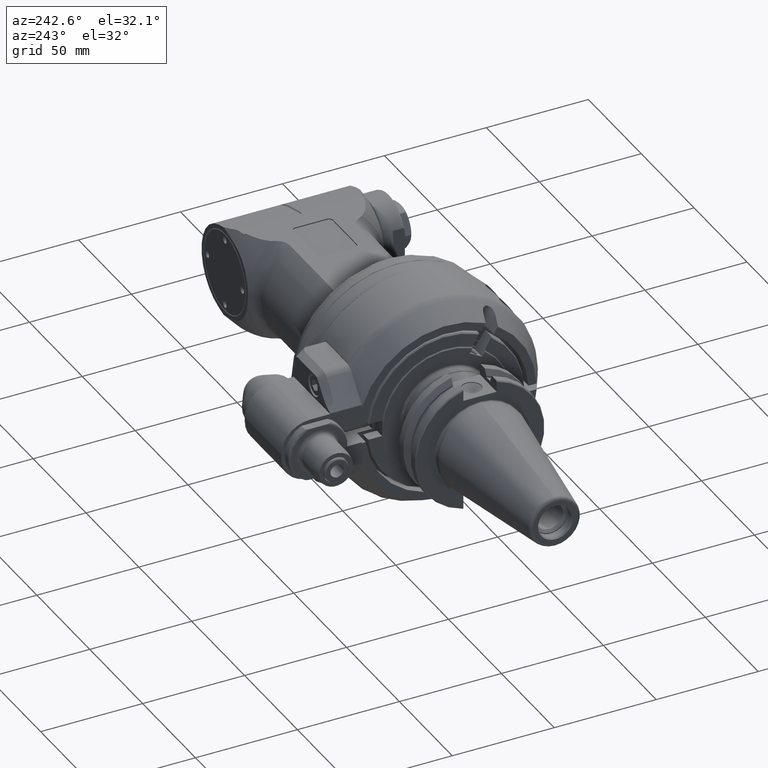
[diagram: clean part render]
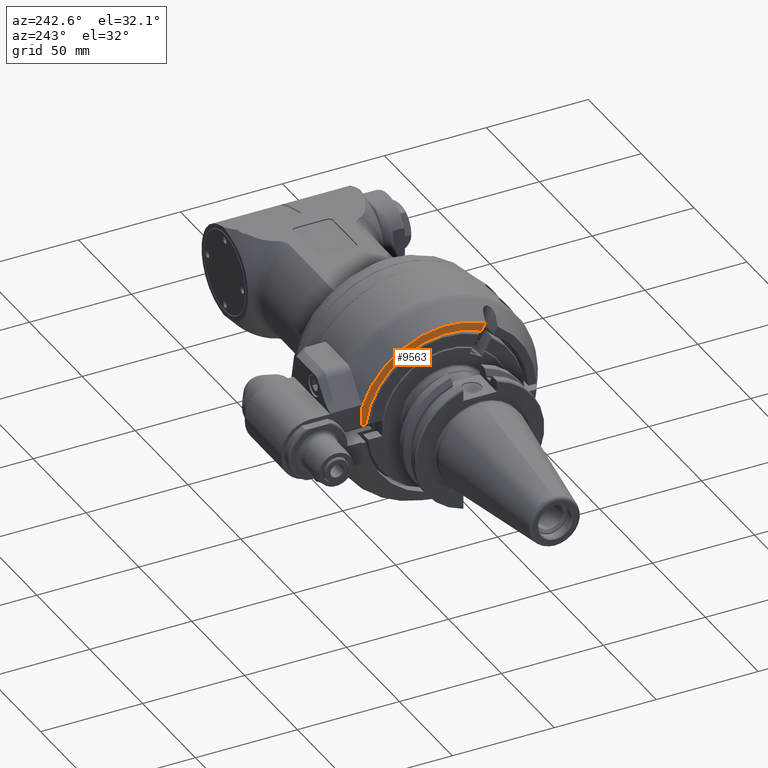
[diagram: same view with one face highlighted and labeled with its STEP entity id]
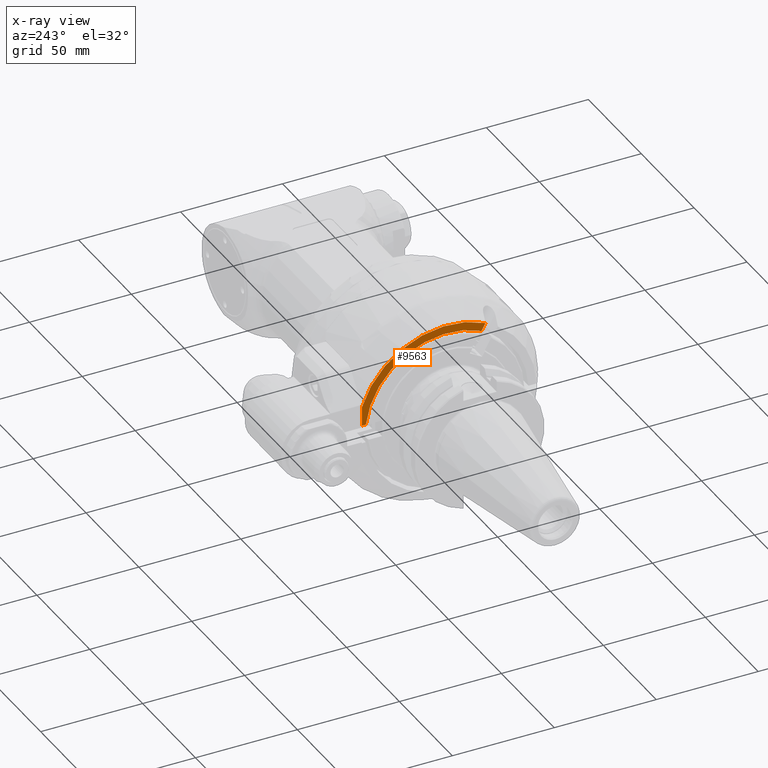
[diagram: x-ray of the same camera — body ghosted, the highlighted face saturated]
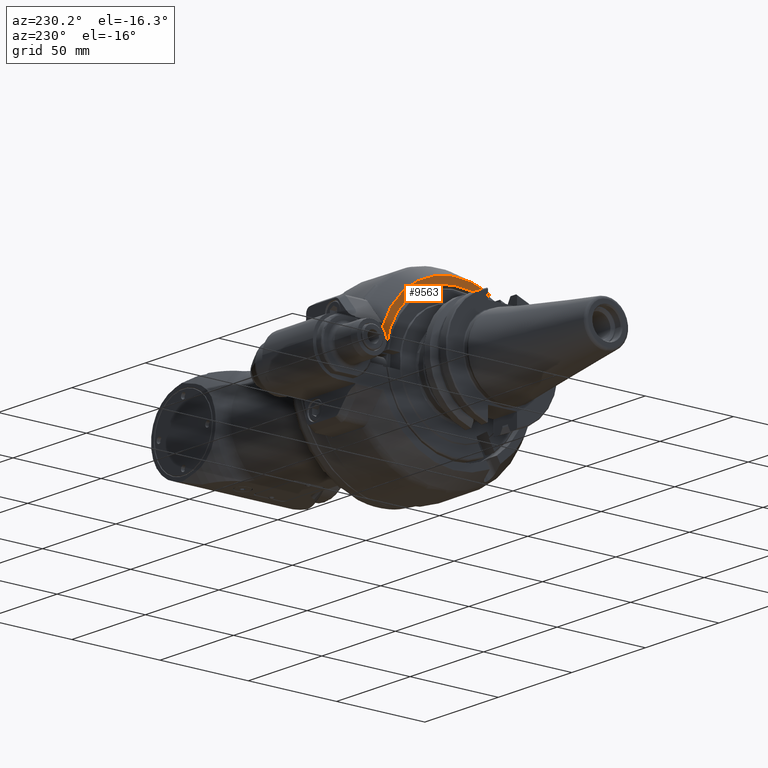
[diagram: same view with one face highlighted and labeled with its STEP entity id]
A machine part, auxiliary view. The second image highlights one B-rep face of the part: STEP entity #9563.
The next image is the same camera in x-ray: the body ghosted, the highlighted face saturated — about 0% of this face is hidden behind the body in this view.
A second angle (auxiliary view) of the same face is appended — the face is thin or edge-on in the first view.
In plain terms, the highlighted planar face has unit normal (-1, -0, 0).
Its self-contained STEP definition (entity closure, byte-faithful):
#894=LINE('',#15736,#1519);
#917=LINE('',#15983,#1542);
#942=LINE('',#16190,#1567);
#1519=VECTOR('',#12459,9.390194383089);
#1542=VECTOR('',#12554,2.003931011986);
#1567=VECTOR('',#12651,4.01399376984687);
#2348=FACE_OUTER_BOUND('',#3013,.T.);
#3013=EDGE_LOOP('',(#7724,#7725,#7726,#7727,#7728));
#3612=CIRCLE('',#10504,40.);
#3619=CIRCLE('',#10516,44.);
#4290=VERTEX_POINT('',#15733);
#4291=VERTEX_POINT('',#15735);
#4328=VERTEX_POINT('',#15980);
#4332=VERTEX_POINT('',#15998);
#4343=VERTEX_POINT('',#16074);
#5443=EDGE_CURVE('',#4291,#4290,#894,.T.);
#5500=EDGE_CURVE('',#4328,#4290,#917,.T.);
#5504=EDGE_CURVE('',#4328,#4332,#3612,.T.);
#5521=EDGE_CURVE('',#4343,#4291,#3619,.T.);
#5554=EDGE_CURVE('',#4332,#4343,#942,.T.);
#7724=ORIENTED_EDGE('',*,*,#5554,.T.);
#7725=ORIENTED_EDGE('',*,*,#5521,.T.);
#7726=ORIENTED_EDGE('',*,*,#5443,.T.);
#7727=ORIENTED_EDGE('',*,*,#5500,.F.);
#7728=ORIENTED_EDGE('',*,*,#5504,.T.);
#9112=PLANE('',#10539);
#9563=ADVANCED_FACE('',(#2348),#9112,.T.);
#10504=AXIS2_PLACEMENT_3D('',#16000,#12559,#12560);
#10516=AXIS2_PLACEMENT_3D('',#16075,#12589,#12590);
#10539=AXIS2_PLACEMENT_3D('',#16191,#12652,#12653);
#12459=DIRECTION('',(0.,0.,-1.));
#12554=DIRECTION('',(0.,1.,0.));
#12559=DIRECTION('center_axis',(1.,0.,0.));
#12560=DIRECTION('ref_axis',(0.,0.993651724700361,0.112499999999996));
#12589=DIRECTION('center_axis',(-1.,0.,0.));
#12590=DIRECTION('ref_axis',(0.,-0.429527235513105,0.90305390423411));
#12651=DIRECTION('',(0.,-0.500000000000017,0.866025403784429));
#12652=DIRECTION('center_axis',(-1.,0.,0.));
#12653=DIRECTION('ref_axis',(0.,-1.,0.));
#15733=CARTESIAN_POINT('',(-51.5,41.75,4.5));
#15735=CARTESIAN_POINT('',(-51.5,41.75,13.89019438309));
#15736=CARTESIAN_POINT('',(-51.5,41.75,13.89019438309));
#15980=CARTESIAN_POINT('',(-51.5,39.74606898801,4.5));
#15983=CARTESIAN_POINT('',(-51.5,39.74606898801,4.5));
#15998=CARTESIAN_POINT('',(-51.5,-16.89220147765,36.25815121098));
#16000=CARTESIAN_POINT('Origin',(-51.5,0.,0.));
#16074=CARTESIAN_POINT('',(-51.5,-18.89919836257,39.7343717863));
#16075=CARTESIAN_POINT('Origin',(-51.5,0.,0.));
#16190=CARTESIAN_POINT('',(-51.5,-16.89220147765,36.25815121098));
#16191=CARTESIAN_POINT('Origin',(-51.5,-40.75,0.));